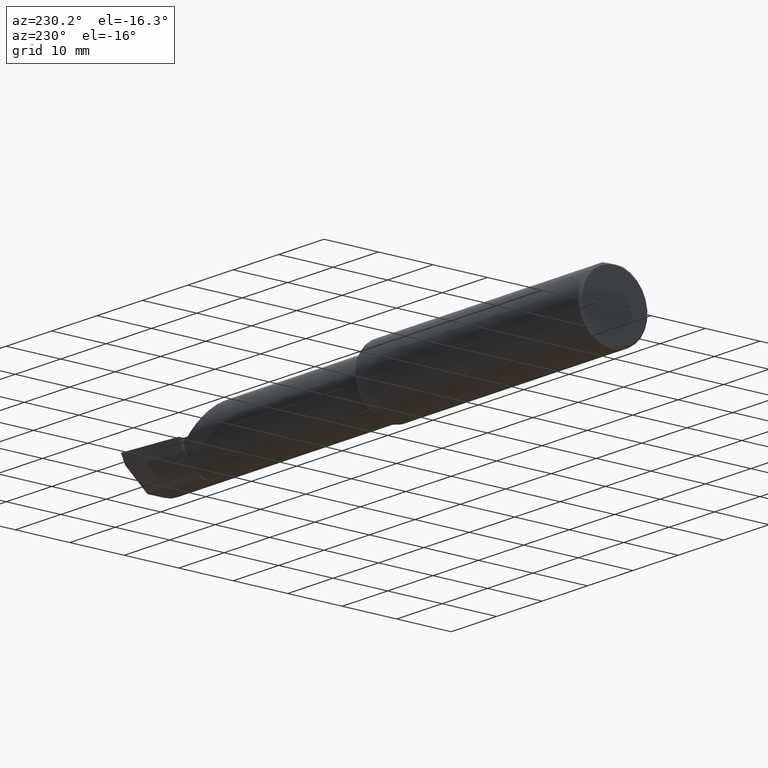
[diagram: clean part render]
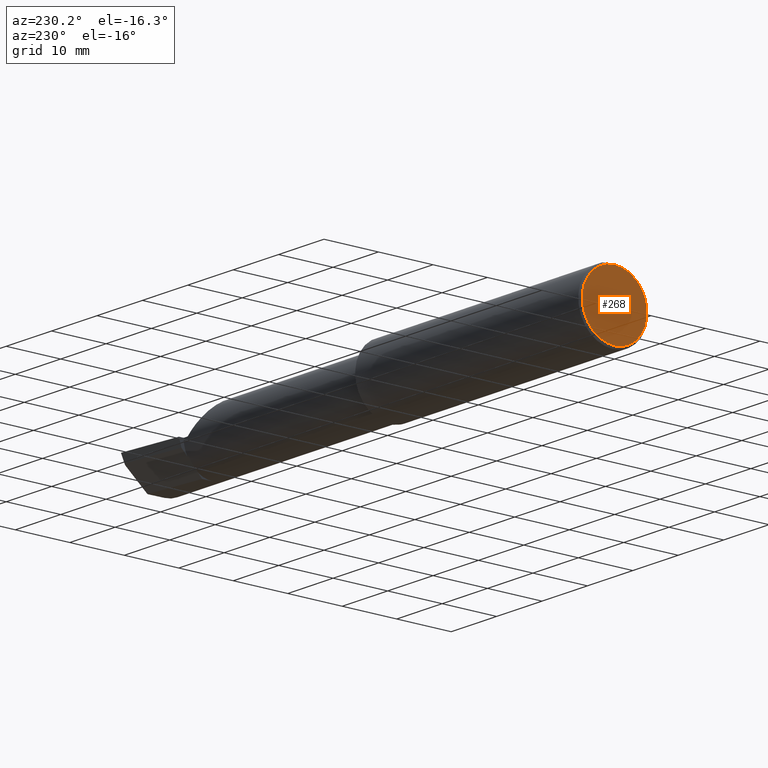
[diagram: same view with one face highlighted and labeled with its STEP entity id]
A machine part, auxiliary view. The second image highlights one B-rep face of the part: STEP entity #268.
In plain terms, the highlighted planar face has unit normal (1, 0, 0).
Its self-contained STEP definition (entity closure, byte-faithful):
#43 = AXIS2_PLACEMENT_3D ( 'NONE', #67, #325, #529 ) ;
#48 = DIRECTION ( 'NONE',  ( 0.000000000000000000, 0.000000000000000000, 1.000000000000000000 ) ) ;
#58 = PLANE ( 'NONE',  #43 ) ;
#67 = CARTESIAN_POINT ( 'NONE',  ( 0.000000000000000000, 0.000000000000000000, 0.000000000000000000 ) ) ;
#135 = EDGE_CURVE ( 'NONE', #460, #763, #310, .T. ) ;
#141 = CIRCLE ( 'NONE', #635, 0.2348499999999996424 ) ;
#172 = CARTESIAN_POINT ( 'NONE',  ( 0.000000000000000000, 2.967931517733664878E-17, 0.2348499999999996424 ) ) ;
#189 = DIRECTION ( 'NONE',  ( 0.000000000000000000, 0.000000000000000000, 1.000000000000000000 ) ) ;
#231 = ORIENTED_EDGE ( 'NONE', *, *, #135, .T. ) ;
#268 = ADVANCED_FACE ( 'NONE', ( #396 ), #58, .F. ) ;
#310 = CIRCLE ( 'NONE', #551, 0.2348499999999996424 ) ;
#325 = DIRECTION ( 'NONE',  ( 1.000000000000000000, 0.000000000000000000, 0.000000000000000000 ) ) ;
#379 = CARTESIAN_POINT ( 'NONE',  ( 0.000000000000000000, 0.000000000000000000, -0.2348499999999996424 ) ) ;
#396 = FACE_OUTER_BOUND ( 'NONE', #569, .T. ) ;
#460 = VERTEX_POINT ( 'NONE', #379 ) ;
#527 = CARTESIAN_POINT ( 'NONE',  ( 0.000000000000000000, 0.000000000000000000, 0.000000000000000000 ) ) ;
#529 = DIRECTION ( 'NONE',  ( 0.000000000000000000, 0.000000000000000000, -1.000000000000000000 ) ) ;
#551 = AXIS2_PLACEMENT_3D ( 'NONE', #593, #859, #48 ) ;
#569 = EDGE_LOOP ( 'NONE', ( #231, #696 ) ) ;
#587 = EDGE_CURVE ( 'NONE', #763, #460, #141, .T. ) ;
#593 = CARTESIAN_POINT ( 'NONE',  ( 0.000000000000000000, 0.000000000000000000, 0.000000000000000000 ) ) ;
#635 = AXIS2_PLACEMENT_3D ( 'NONE', #527, #794, #189 ) ;
#696 = ORIENTED_EDGE ( 'NONE', *, *, #587, .T. ) ;
#763 = VERTEX_POINT ( 'NONE', #172 ) ;
#794 = DIRECTION ( 'NONE',  ( -1.000000000000000000, -0.000000000000000000, -0.000000000000000000 ) ) ;
#859 = DIRECTION ( 'NONE',  ( -1.000000000000000000, -0.000000000000000000, -0.000000000000000000 ) ) ;